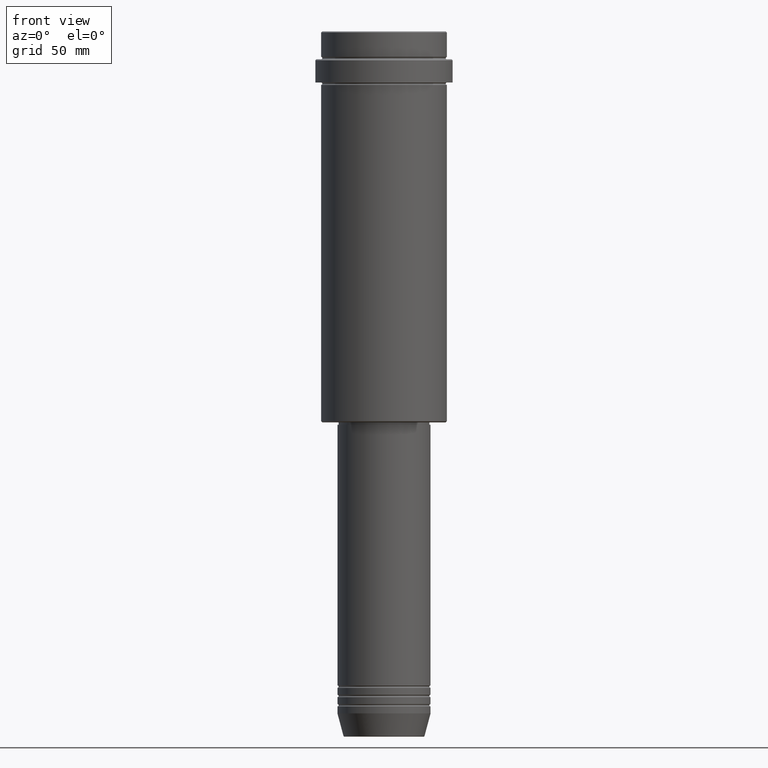
[diagram: clean part render]
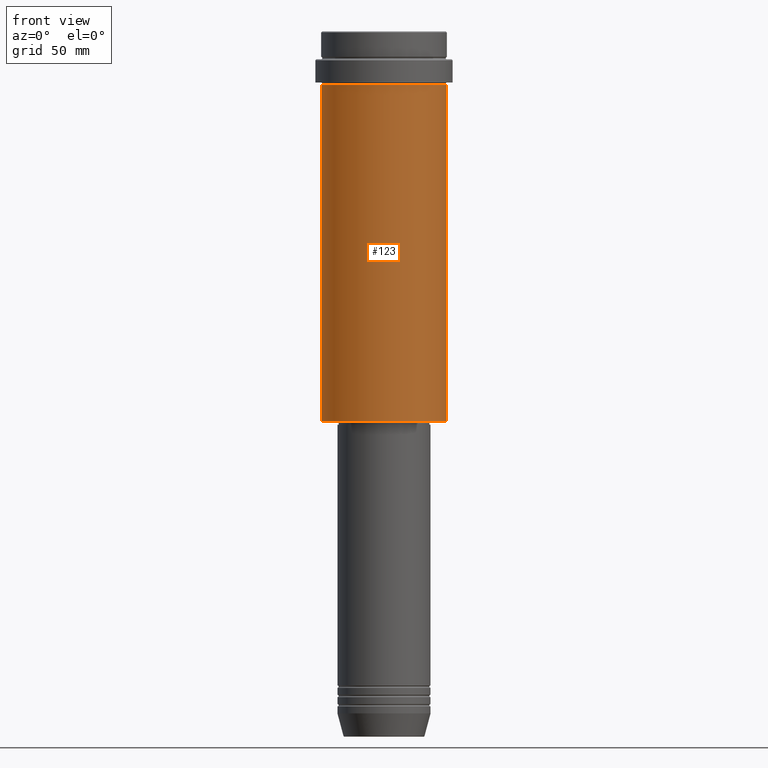
[diagram: same view with one face highlighted and labeled with its STEP entity id]
A machine part, front view. The second image highlights one B-rep face of the part: STEP entity #123.
In plain terms, the highlighted cylindrical surface (partial cylindrical patch) has radius 27 mm, axis along (-0, -0, 1).
Its self-contained STEP definition (entity closure, byte-faithful):
#44 = EDGE_CURVE ( 'NONE', #1108, #763, #926, .T. ) ;
#59 = CARTESIAN_POINT ( 'NONE',  ( -27.00000000000000355, 3.306546357697854128E-15, -167.4999999999998863 ) ) ;
#123 = ADVANCED_FACE ( 'NONE', ( #961 ), #1391, .T. ) ;
#135 = DIRECTION ( 'NONE',  ( -0.000000000000000000, -0.000000000000000000, 1.000000000000000000 ) ) ;
#175 = ORIENTED_EDGE ( 'NONE', *, *, #44, .T. ) ;
#207 = ORIENTED_EDGE ( 'NONE', *, *, #308, .T. ) ;
#216 = EDGE_CURVE ( 'NONE', #770, #450, #1292, .T. ) ;
#257 = CARTESIAN_POINT ( 'NONE',  ( 0.000000000000000000, 0.000000000000000000, -23.00000000000001421 ) ) ;
#275 = DIRECTION ( 'NONE',  ( -1.000000000000000000, 0.000000000000000000, 0.000000000000000000 ) ) ;
#278 = CARTESIAN_POINT ( 'NONE',  ( 27.00000000000000355, 0.000000000000000000, 0.000000000000000000 ) ) ;
#308 = EDGE_CURVE ( 'NONE', #763, #450, #390, .T. ) ;
#309 = ORIENTED_EDGE ( 'NONE', *, *, #216, .F. ) ;
#371 = CARTESIAN_POINT ( 'NONE',  ( 0.000000000000000000, 0.000000000000000000, -167.4999999999998863 ) ) ;
#390 = LINE ( 'NONE', #278, #461 ) ;
#399 = CARTESIAN_POINT ( 'NONE',  ( 27.00000000000000355, 0.000000000000000000, -167.4999999999998863 ) ) ;
#417 = DIRECTION ( 'NONE',  ( 1.000000000000000000, 0.000000000000000000, 0.000000000000000000 ) ) ;
#450 = VERTEX_POINT ( 'NONE', #676 ) ;
#461 = VECTOR ( 'NONE', #728, 1000.000000000000000 ) ;
#599 = DIRECTION ( 'NONE',  ( 1.000000000000000000, 0.000000000000000000, 0.000000000000000000 ) ) ;
#672 = ORIENTED_EDGE ( 'NONE', *, *, #1143, .F. ) ;
#676 = CARTESIAN_POINT ( 'NONE',  ( 27.00000000000000355, 0.000000000000000000, -23.00000000000001421 ) ) ;
#721 = DIRECTION ( 'NONE',  ( -0.000000000000000000, -0.000000000000000000, 1.000000000000000000 ) ) ;
#727 = CARTESIAN_POINT ( 'NONE',  ( -27.00000000000000355, 3.306546357697854128E-15, 0.000000000000000000 ) ) ;
#728 = DIRECTION ( 'NONE',  ( -0.000000000000000000, -0.000000000000000000, 1.000000000000000000 ) ) ;
#730 = CARTESIAN_POINT ( 'NONE',  ( -27.00000000000000355, 3.306546357697854128E-15, -23.00000000000001421 ) ) ;
#752 = AXIS2_PLACEMENT_3D ( 'NONE', #257, #135, #599 ) ;
#763 = VERTEX_POINT ( 'NONE', #399 ) ;
#770 = VERTEX_POINT ( 'NONE', #730 ) ;
#832 = CARTESIAN_POINT ( 'NONE',  ( 0.000000000000000000, 0.000000000000000000, 0.000000000000000000 ) ) ;
#837 = LINE ( 'NONE', #727, #945 ) ;
#898 = AXIS2_PLACEMENT_3D ( 'NONE', #832, #1396, #417 ) ;
#926 = CIRCLE ( 'NONE', #1272, 27.00000000000000355 ) ;
#945 = VECTOR ( 'NONE', #1144, 1000.000000000000000 ) ;
#961 = FACE_OUTER_BOUND ( 'NONE', #1216, .T. ) ;
#1108 = VERTEX_POINT ( 'NONE', #59 ) ;
#1143 = EDGE_CURVE ( 'NONE', #1108, #770, #837, .T. ) ;
#1144 = DIRECTION ( 'NONE',  ( -0.000000000000000000, -0.000000000000000000, 1.000000000000000000 ) ) ;
#1216 = EDGE_LOOP ( 'NONE', ( #672, #175, #207, #309 ) ) ;
#1272 = AXIS2_PLACEMENT_3D ( 'NONE', #371, #721, #275 ) ;
#1292 = CIRCLE ( 'NONE', #752, 27.00000000000000355 ) ;
#1391 = CYLINDRICAL_SURFACE ( 'NONE', #898, 27.00000000000000355 ) ;
#1396 = DIRECTION ( 'NONE',  ( -0.000000000000000000, -0.000000000000000000, 1.000000000000000000 ) ) ;